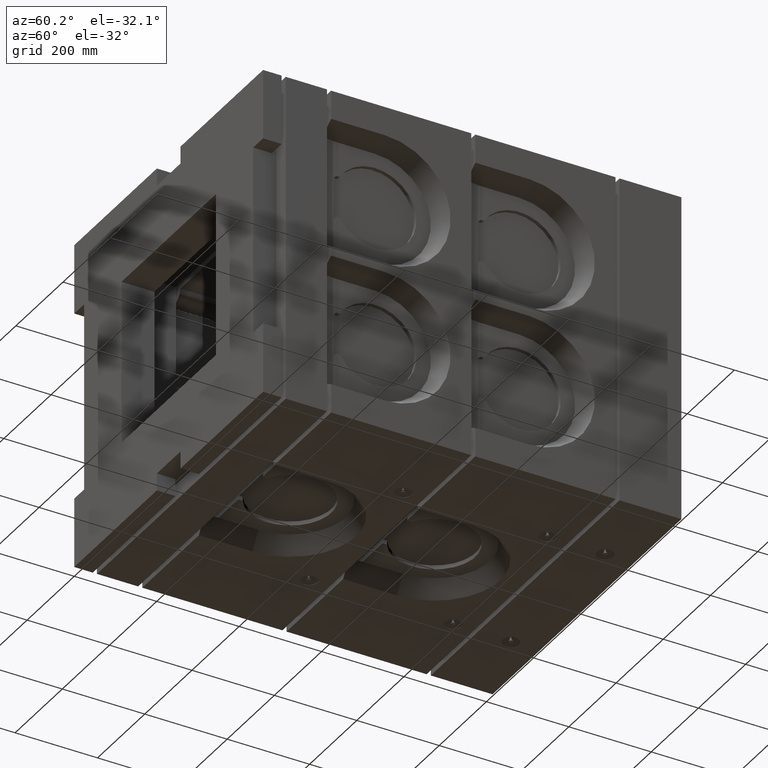
[diagram: clean part render]
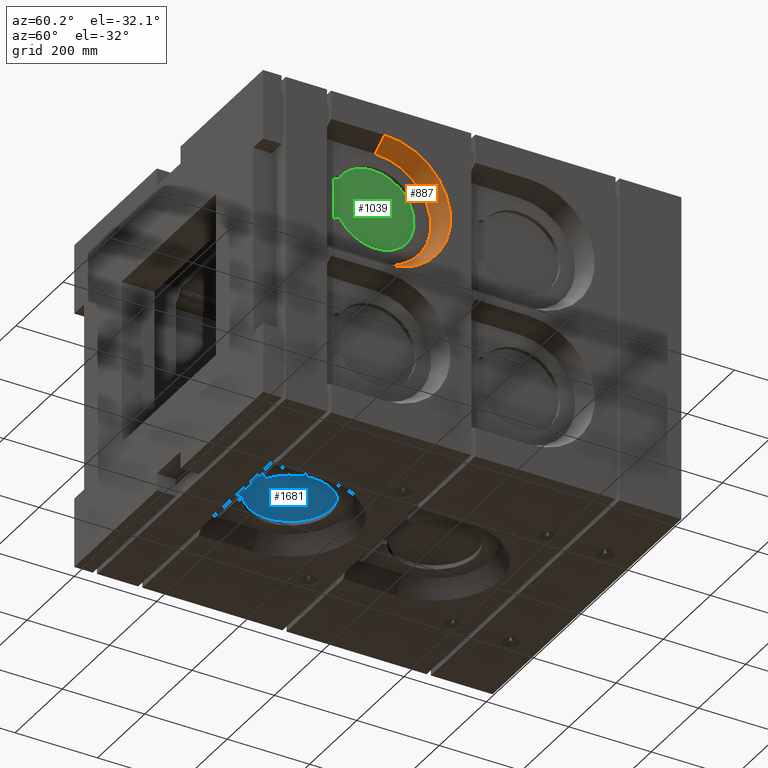
[diagram: same view with three faces highlighted in distinct colors, each labeled with its STEP entity id]
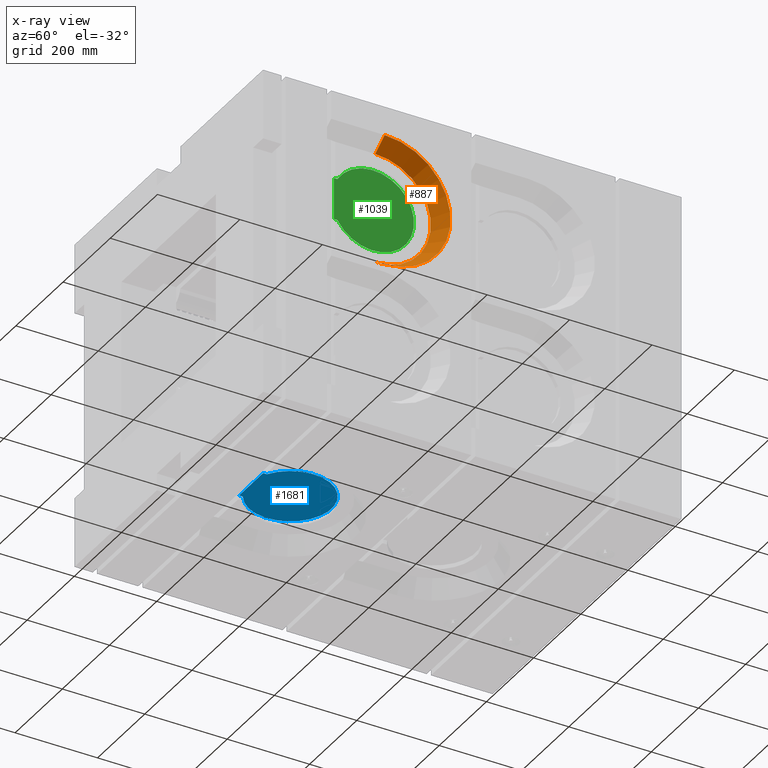
[diagram: x-ray of the same camera — body ghosted, the three highlighted faces saturated]
A machine part, auxiliary view with three faces highlighted in distinct colors.
The next image is the same camera in x-ray (body ghosted, the three faces saturated) — at least one of them is partly hidden behind the body in this view.
Their STEP definitions:

[orange] entity #887 — the highlighted conical surface has half-angle 32 deg.
#676 = ORIENTED_EDGE ( 'NONE', *, *, #10963, .F. ) ;
#887 = ADVANCED_FACE ( 'NONE', ( #19503 ), #11543, .F. ) ;
#1644 = AXIS2_PLACEMENT_3D ( 'NONE', #12391, #6104, #16092 ) ;
#2527 = VECTOR ( 'NONE', #16875, 1000.000000000000114 ) ;
#3588 = DIRECTION ( 'NONE',  ( 0.0000000000000000000, 0.0000000000000000000, 1.000000000000000000 ) ) ;
#3718 = DIRECTION ( 'NONE',  ( 1.000000000000000000, 0.0000000000000000000, 0.0000000000000000000 ) ) ;
#3967 = CARTESIAN_POINT ( 'NONE',  ( 399.9999999999998863, 294.9999999999999432, 10.00000000000000888 ) ) ;
#4170 = VECTOR ( 'NONE', #12497, 1000.000000000000114 ) ;
#4810 = VERTEX_POINT ( 'NONE', #23272 ) ;
#5397 = DIRECTION ( 'NONE',  ( -1.000000000000000000, -0.0000000000000000000, 0.0000000000000000000 ) ) ;
#6104 = DIRECTION ( 'NONE',  ( -1.000000000000000000, -0.0000000000000000000, -0.0000000000000000000 ) ) ;
#6627 = EDGE_LOOP ( 'NONE', ( #25150, #676, #11652, #9513 ) ) ;
#7084 = EDGE_CURVE ( 'NONE', #24166, #11820, #15603, .T. ) ;
#7284 = CARTESIAN_POINT ( 'NONE',  ( 399.9999999999998863, 294.9999999999999432, 10.00000000000000888 ) ) ;
#7542 = EDGE_CURVE ( 'NONE', #17325, #11820, #17822, .T. ) ;
#7658 = CARTESIAN_POINT ( 'NONE',  ( 359.9999999999999432, 294.9999999999999432, 34.99477407637319004 ) ) ;
#8101 = AXIS2_PLACEMENT_3D ( 'NONE', #23754, #5397, #3588 ) ;
#8720 = CARTESIAN_POINT ( 'NONE',  ( 399.9999999999998863, 294.9999999999999432, 329.9999999999999432 ) ) ;
#9513 = ORIENTED_EDGE ( 'NONE', *, *, #7084, .T. ) ;
#10475 = CIRCLE ( 'NONE', #1644, 135.0052259236267957 ) ;
#10963 = EDGE_CURVE ( 'NONE', #4810, #17325, #14582, .T. ) ;
#11543 = CONICAL_SURFACE ( 'NONE', #12033, 159.9999999999999716, 0.5585053606381866764 ) ;
#11652 = ORIENTED_EDGE ( 'NONE', *, *, #18952, .T. ) ;
#11820 = VERTEX_POINT ( 'NONE', #7284 ) ;
#12033 = AXIS2_PLACEMENT_3D ( 'NONE', #13826, #3718, #26235 ) ;
#12391 = CARTESIAN_POINT ( 'NONE',  ( 359.9999999999999432, 294.9999999999999432, 169.9999999999999716 ) ) ;
#12497 = DIRECTION ( 'NONE',  ( 0.8480480961564252906, -1.176657136688255272E-16, -0.5299192642332060110 ) ) ;
#13826 = CARTESIAN_POINT ( 'NONE',  ( 399.9999999999998863, 294.9999999999999432, 169.9999999999999716 ) ) ;
#14582 = LINE ( 'NONE', #8720, #2527 ) ;
#15105 = CARTESIAN_POINT ( 'NONE',  ( 399.9999999999998863, 294.9999999999999432, 329.9999999999999432 ) ) ;
#15603 = LINE ( 'NONE', #3967, #4170 ) ;
#16092 = DIRECTION ( 'NONE',  ( 0.0000000000000000000, 0.0000000000000000000, -1.000000000000000000 ) ) ;
#16875 = DIRECTION ( 'NONE',  ( 0.8480480961564252906, 0.0000000000000000000, 0.5299192642332060110 ) ) ;
#17325 = VERTEX_POINT ( 'NONE', #15105 ) ;
#17822 = CIRCLE ( 'NONE', #8101, 159.9999999999999716 ) ;
#18952 = EDGE_CURVE ( 'NONE', #4810, #24166, #10475, .T. ) ;
#19503 = FACE_OUTER_BOUND ( 'NONE', #6627, .T. ) ;
#23272 = CARTESIAN_POINT ( 'NONE',  ( 359.9999999999999432, 294.9999999999999432, 305.0052259236267673 ) ) ;
#23754 = CARTESIAN_POINT ( 'NONE',  ( 399.9999999999998863, 294.9999999999999432, 169.9999999999999716 ) ) ;
#24166 = VERTEX_POINT ( 'NONE', #7658 ) ;
#25150 = ORIENTED_EDGE ( 'NONE', *, *, #7542, .F. ) ;
#26235 = DIRECTION ( 'NONE',  ( 0.0000000000000000000, 0.0000000000000000000, 1.000000000000000000 ) ) ;

[blue] entity #1681 — the highlighted planar face has unit normal (0, 0, -1).
#403 = AXIS2_PLACEMENT_3D ( 'NONE', #3367, #15594, #21506 ) ;
#1417 = DIRECTION ( 'NONE',  ( 0.0000000000000000000, 0.0000000000000000000, -1.000000000000000000 ) ) ;
#1463 = AXIS2_PLACEMENT_3D ( 'NONE', #21810, #1417, #9871 ) ;
#1681 = ADVANCED_FACE ( 'NONE', ( #17697 ), #11918, .T. ) ;
#1955 = CARTESIAN_POINT ( 'NONE',  ( -51.00000000000004263, 199.9999999999999147, -349.9999999999999432 ) ) ;
#2200 = VECTOR ( 'NONE', #15451, 1000.000000000000000 ) ;
#3025 = VERTEX_POINT ( 'NONE', #4434 ) ;
#3367 = CARTESIAN_POINT ( 'NONE',  ( -1.110223024625156540E-13, 294.9999999999999432, -349.9999999999999432 ) ) ;
#4314 = LINE ( 'NONE', #24257, #12931 ) ;
#4434 = CARTESIAN_POINT ( 'NONE',  ( 50.99999999999987921, 199.9999999999999147, -349.9999999999999432 ) ) ;
#4633 = VERTEX_POINT ( 'NONE', #1955 ) ;
#6886 = EDGE_CURVE ( 'NONE', #26131, #14564, #12784, .T. ) ;
#8190 = EDGE_CURVE ( 'NONE', #3025, #4633, #16494, .T. ) ;
#8482 = ORIENTED_EDGE ( 'NONE', *, *, #8998, .F. ) ;
#8915 = DIRECTION ( 'NONE',  ( -1.000000000000000000, 0.0000000000000000000, -0.0000000000000000000 ) ) ;
#8988 = CARTESIAN_POINT ( 'NONE',  ( 50.99999999999987921, 208.9825599078883727, -349.9999999999999432 ) ) ;
#8998 = EDGE_CURVE ( 'NONE', #14564, #4633, #4314, .T. ) ;
#9871 = DIRECTION ( 'NONE',  ( 1.000000000000000000, 0.0000000000000000000, 0.0000000000000000000 ) ) ;
#10480 = LINE ( 'NONE', #8988, #2200 ) ;
#10491 = VECTOR ( 'NONE', #8915, 1000.000000000000000 ) ;
#10896 = CARTESIAN_POINT ( 'NONE',  ( 362.0000000000000000, 199.9999999999999147, -349.9999999999999432 ) ) ;
#11918 = PLANE ( 'NONE',  #1463 ) ;
#12784 = CIRCLE ( 'NONE', #403, 100.0000000000000000 ) ;
#12931 = VECTOR ( 'NONE', #16158, 1000.000000000000000 ) ;
#13765 = CARTESIAN_POINT ( 'NONE',  ( -51.00000000000004263, 208.9825599078883442, -349.9999999999999432 ) ) ;
#14564 = VERTEX_POINT ( 'NONE', #13765 ) ;
#15451 = DIRECTION ( 'NONE',  ( -7.818492458140543732E-16, 1.000000000000000000, 0.0000000000000000000 ) ) ;
#15594 = DIRECTION ( 'NONE',  ( -0.0000000000000000000, -0.0000000000000000000, 1.000000000000000000 ) ) ;
#16158 = DIRECTION ( 'NONE',  ( 0.0000000000000000000, -1.000000000000000000, 0.0000000000000000000 ) ) ;
#16494 = LINE ( 'NONE', #10896, #10491 ) ;
#17697 = FACE_OUTER_BOUND ( 'NONE', #25658, .T. ) ;
#19315 = EDGE_CURVE ( 'NONE', #3025, #26131, #10480, .T. ) ;
#21506 = DIRECTION ( 'NONE',  ( 1.000000000000000000, 0.0000000000000000000, 0.0000000000000000000 ) ) ;
#21810 = CARTESIAN_POINT ( 'NONE',  ( -1.110223024625156540E-13, 294.9999999999999432, -349.9999999999999432 ) ) ;
#22113 = ORIENTED_EDGE ( 'NONE', *, *, #6886, .F. ) ;
#22224 = ORIENTED_EDGE ( 'NONE', *, *, #19315, .F. ) ;
#23521 = CARTESIAN_POINT ( 'NONE',  ( 50.99999999999987921, 208.9825599078883727, -349.9999999999999432 ) ) ;
#24257 = CARTESIAN_POINT ( 'NONE',  ( -51.00000000000004263, 208.9825599078883442, -349.9999999999999432 ) ) ;
#24592 = ORIENTED_EDGE ( 'NONE', *, *, #8190, .T. ) ;
#25658 = EDGE_LOOP ( 'NONE', ( #24592, #8482, #22113, #22224 ) ) ;
#26131 = VERTEX_POINT ( 'NONE', #23521 ) ;

[green] entity #1039 — the highlighted planar face has unit normal (1, 0, -0).
#404 = EDGE_CURVE ( 'NONE', #5323, #24323, #9646, .T. ) ;
#987 = LINE ( 'NONE', #3275, #12458 ) ;
#1039 = ADVANCED_FACE ( 'NONE', ( #14644 ), #4596, .T. ) ;
#1886 = CARTESIAN_POINT ( 'NONE',  ( 349.9999999999998863, 208.9825599078883727, 220.9999999999999716 ) ) ;
#2657 = CARTESIAN_POINT ( 'NONE',  ( 349.9999999999998863, 294.9999999999999432, 169.9999999999999716 ) ) ;
#2707 = LINE ( 'NONE', #17607, #5284 ) ;
#3275 = CARTESIAN_POINT ( 'NONE',  ( 349.9999999999998863, 208.9825599078883727, 119.0000000000000000 ) ) ;
#4596 = PLANE ( 'NONE',  #5228 ) ;
#5228 = AXIS2_PLACEMENT_3D ( 'NONE', #12954, #15026, #23153 ) ;
#5284 = VECTOR ( 'NONE', #23765, 1000.000000000000000 ) ;
#5323 = VERTEX_POINT ( 'NONE', #24659 ) ;
#5886 = CARTESIAN_POINT ( 'NONE',  ( 349.9999999999998863, 208.9825599078883727, 220.9999999999999716 ) ) ;
#7800 = VERTEX_POINT ( 'NONE', #9039 ) ;
#7967 = CARTESIAN_POINT ( 'NONE',  ( 349.9999999999998863, 208.9825599078883727, 119.0000000000000000 ) ) ;
#8676 = EDGE_CURVE ( 'NONE', #24323, #10726, #19025, .T. ) ;
#9032 = ORIENTED_EDGE ( 'NONE', *, *, #404, .F. ) ;
#9039 = CARTESIAN_POINT ( 'NONE',  ( 349.9999999999998863, 199.9999999999999147, 119.0000000000000000 ) ) ;
#9064 = DIRECTION ( 'NONE',  ( 0.0000000000000000000, 0.0000000000000000000, 1.000000000000000000 ) ) ;
#9646 = LINE ( 'NONE', #1886, #18514 ) ;
#10109 = EDGE_LOOP ( 'NONE', ( #11256, #17828, #20148, #9032 ) ) ;
#10726 = VERTEX_POINT ( 'NONE', #7967 ) ;
#11256 = ORIENTED_EDGE ( 'NONE', *, *, #25177, .T. ) ;
#12458 = VECTOR ( 'NONE', #19382, 1000.000000000000000 ) ;
#12954 = CARTESIAN_POINT ( 'NONE',  ( 349.9999999999998863, 294.9999999999999432, 169.9999999999999716 ) ) ;
#14644 = FACE_OUTER_BOUND ( 'NONE', #10109, .T. ) ;
#14841 = EDGE_CURVE ( 'NONE', #10726, #7800, #987, .T. ) ;
#15026 = DIRECTION ( 'NONE',  ( 1.000000000000000000, 0.0000000000000000000, -0.0000000000000000000 ) ) ;
#16105 = DIRECTION ( 'NONE',  ( 0.0000000000000000000, 1.000000000000000000, -3.700743415417188632E-16 ) ) ;
#17488 = AXIS2_PLACEMENT_3D ( 'NONE', #2657, #24956, #9064 ) ;
#17607 = CARTESIAN_POINT ( 'NONE',  ( 349.9999999999998863, 199.9999999999999147, -361.9999999999999432 ) ) ;
#17828 = ORIENTED_EDGE ( 'NONE', *, *, #14841, .F. ) ;
#18514 = VECTOR ( 'NONE', #16105, 1000.000000000000000 ) ;
#19025 = CIRCLE ( 'NONE', #17488, 100.0000000000000284 ) ;
#19382 = DIRECTION ( 'NONE',  ( 0.0000000000000000000, -1.000000000000000000, 0.0000000000000000000 ) ) ;
#20148 = ORIENTED_EDGE ( 'NONE', *, *, #8676, .F. ) ;
#23153 = DIRECTION ( 'NONE',  ( 0.0000000000000000000, 0.0000000000000000000, 1.000000000000000000 ) ) ;
#23765 = DIRECTION ( 'NONE',  ( 0.0000000000000000000, 0.0000000000000000000, -1.000000000000000000 ) ) ;
#24323 = VERTEX_POINT ( 'NONE', #5886 ) ;
#24659 = CARTESIAN_POINT ( 'NONE',  ( 349.9999999999998863, 199.9999999999999147, 220.9999999999999716 ) ) ;
#24956 = DIRECTION ( 'NONE',  ( -1.000000000000000000, -0.0000000000000000000, 0.0000000000000000000 ) ) ;
#25177 = EDGE_CURVE ( 'NONE', #5323, #7800, #2707, .T. ) ;